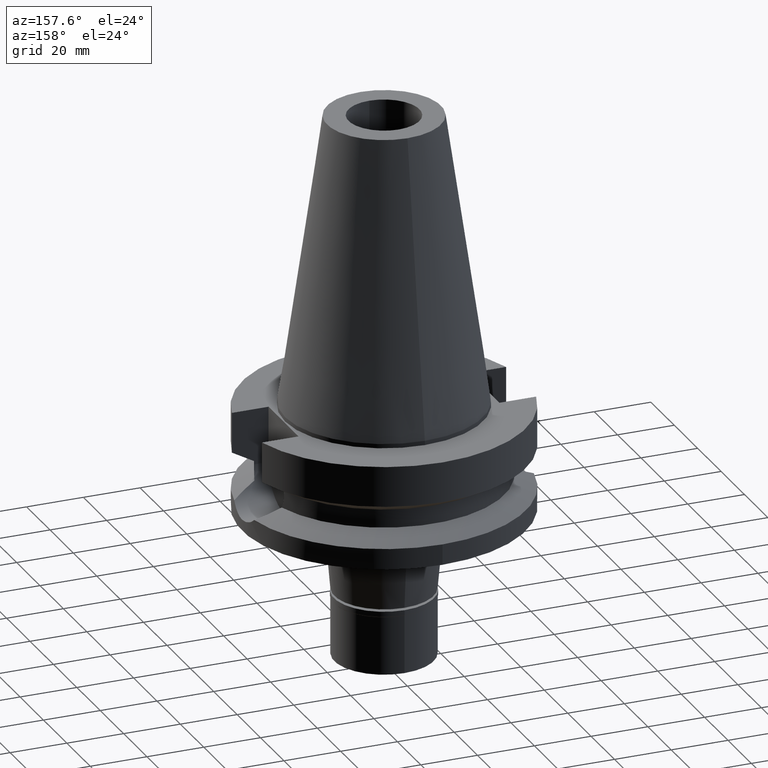
[diagram: clean part render]
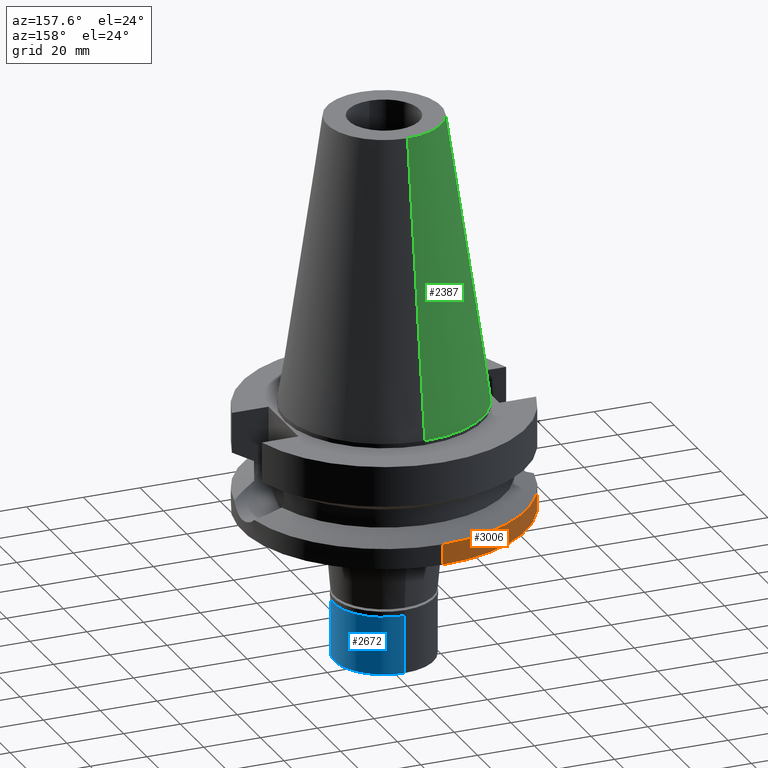
[diagram: same view with three faces highlighted in distinct colors, each labeled with its STEP entity id]
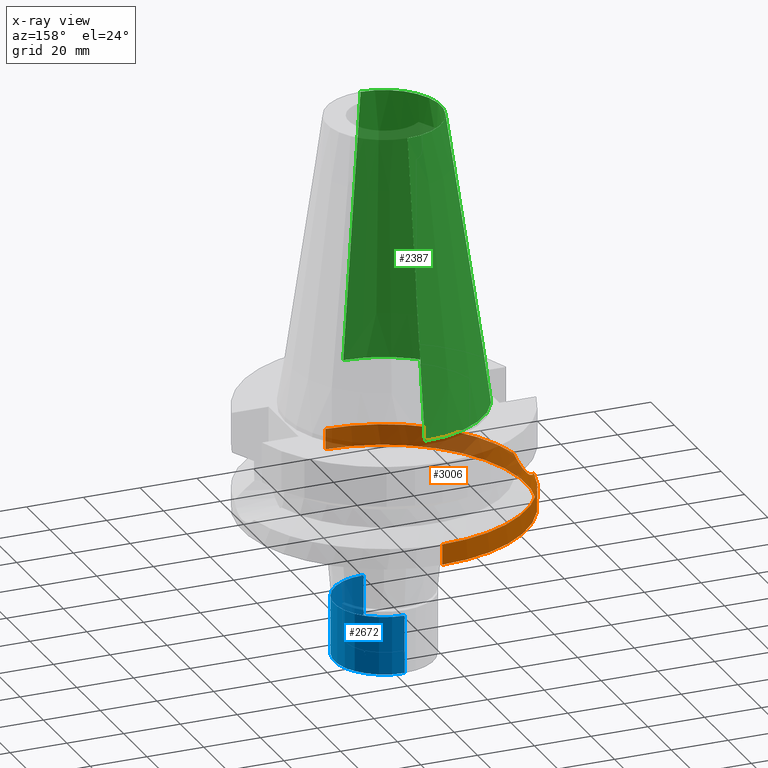
[diagram: x-ray of the same camera — body ghosted, the three highlighted faces saturated]
A machine part, auxiliary view with three faces highlighted in distinct colors.
The next image is the same camera in x-ray (body ghosted, the three faces saturated) — at least one of them is partly hidden behind the body in this view.
Their STEP definitions:

[orange] entity #3006 — the highlighted cylindrical surface (partial cylindrical patch) has radius 50 mm, axis along (0, 0, -1).
#75 = AXIS2_PLACEMENT_3D ( 'NONE', #922, #692, #2849 ) ;
#83 = CARTESIAN_POINT ( 'NONE',  ( -49.99656748919151283, 0.6198751114406390039, -33.98745238092824650 ) ) ;
#104 = CARTESIAN_POINT ( 'NONE',  ( -49.50802364957592516, 6.996643990318164974, -31.92857083793219175 ) ) ;
#119 = CARTESIAN_POINT ( 'NONE',  ( -49.79207077459926012, 4.554957529548581796, -33.16561446374463173 ) ) ;
#133 = CARTESIAN_POINT ( 'NONE',  ( -49.78024957254832827, 4.682602905082632994, -33.11659475770514405 ) ) ;
#149 = CARTESIAN_POINT ( 'NONE',  ( -49.55660296224259298, 6.644051108347784229, -32.14905121251541686 ) ) ;
#166 = VERTEX_POINT ( 'NONE', #225 ) ;
#181 = CIRCLE ( 'NONE', #75, 50.00000000000000000 ) ;
#202 = CARTESIAN_POINT ( 'NONE',  ( -49.26250064874000145, -8.556052234130000045, -30.73730776426999967 ) ) ;
#225 = CARTESIAN_POINT ( 'NONE',  ( -49.26250064874000145, 8.556052234130000045, -30.73730776426999967 ) ) ;
#231 = CARTESIAN_POINT ( 'NONE',  ( 0.0000000000000000000, -50.00000000000000000, -30.73730776426999967 ) ) ;
#320 = FACE_OUTER_BOUND ( 'NONE', #1792, .T. ) ;
#353 = CARTESIAN_POINT ( 'NONE',  ( -49.78718657742204101, 4.608071001832901636, -33.14537780177069237 ) ) ;
#371 = CARTESIAN_POINT ( 'NONE',  ( -49.96641370053853848, 1.854335669715734713, -33.87145058386469287 ) ) ;
#385 = CARTESIAN_POINT ( 'NONE',  ( -49.64903245720372382, 5.923660223744955822, -32.55987247520176453 ) ) ;
#400 = CARTESIAN_POINT ( 'NONE',  ( -49.80435567630478033, -4.418991950005775493, -33.21646025970883187 ) ) ;
#445 = ORIENTED_EDGE ( 'NONE', *, *, #727, .F. ) ;
#459 = CARTESIAN_POINT ( 'NONE',  ( -49.61115140422289471, -6.223964729746135127, -32.39254390107655013 ) ) ;
#460 = EDGE_CURVE ( 'NONE', #587, #1283, #2958, .T. ) ;
#553 = CARTESIAN_POINT ( 'NONE',  ( -49.76602569635761597, 4.832263763682187019, -33.05741896609282549 ) ) ;
#587 = VERTEX_POINT ( 'NONE', #231 ) ;
#618 = CARTESIAN_POINT ( 'NONE',  ( -49.97921232366404354, 1.472283131532135192, -33.92105330254109674 ) ) ;
#675 = CARTESIAN_POINT ( 'NONE',  ( -49.79691665736367412, -4.501773781380278727, -33.18568231503974886 ) ) ;
#692 = DIRECTION ( 'NONE',  ( 0.0000000000000000000, 0.0000000000000000000, -1.000000000000000000 ) ) ;
#727 = EDGE_CURVE ( 'NONE', #587, #1932, #2709, .T. ) ;
#735 = DIRECTION ( 'NONE',  ( 0.0000000000000000000, -2.250196262218000018E-14, -1.000000000000000000 ) ) ;
#758 = CARTESIAN_POINT ( 'NONE',  ( 0.0000000000000000000, 50.00000000000000000, -38.00000000000000000 ) ) ;
#799 = CARTESIAN_POINT ( 'NONE',  ( -49.92889851896556053, -2.680302570049156952, -33.72333287909097521 ) ) ;
#848 = CARTESIAN_POINT ( 'NONE',  ( -49.54916658601803192, 6.699295305162834779, -32.11552208874995529 ) ) ;
#862 = CARTESIAN_POINT ( 'NONE',  ( -49.57428995783436676, -6.510997233100431991, -32.22853959655537892 ) ) ;
#865 = ORIENTED_EDGE ( 'NONE', *, *, #2056, .T. ) ;
#895 = ORIENTED_EDGE ( 'NONE', *, *, #3059, .F. ) ;
#922 = CARTESIAN_POINT ( 'NONE',  ( 0.0000000000000000000, 0.0000000000000000000, -30.73730776426999967 ) ) ;
#925 = CARTESIAN_POINT ( 'NONE',  ( -49.59445580804035814, -6.356262091086591681, -32.31864549459512403 ) ) ;
#1016 = CARTESIAN_POINT ( 'NONE',  ( 0.0000000000000000000, 50.00000000000000000, -30.73730776426999967 ) ) ;
#1017 = CARTESIAN_POINT ( 'NONE',  ( -49.26250064874000145, -8.556052234130000045, -30.73730776426999967 ) ) ;
#1024 = CARTESIAN_POINT ( 'NONE',  ( -49.98153239809872872, -1.536309943115428345, -33.93135900366053193 ) ) ;
#1026 = CARTESIAN_POINT ( 'NONE',  ( 0.0000000000000000000, 0.0000000000000000000, -30.73730776426999967 ) ) ;
#1059 = CARTESIAN_POINT ( 'NONE',  ( -49.32374122236981862, 8.203452259786416789, -31.05198044114845146 ) ) ;
#1064 = ORIENTED_EDGE ( 'NONE', *, *, #460, .T. ) ;
#1072 = CARTESIAN_POINT ( 'NONE',  ( -49.99918498204763040, 0.2914842725003467527, -33.99728988284343956 ) ) ;
#1109 = CARTESIAN_POINT ( 'NONE',  ( -49.79153138710990589, -4.560858291814150256, -33.16337717898378656 ) ) ;
#1121 = CARTESIAN_POINT ( 'NONE',  ( -49.38328813138510043, -7.860603763329423010, -31.35795055457392522 ) ) ;
#1137 = CARTESIAN_POINT ( 'NONE',  ( -49.55886472126628206, -6.627183405198656452, -32.15923396748349461 ) ) ;
#1184 = B_SPLINE_CURVE_WITH_KNOTS ( 'NONE', 3,
 ( #2279, #1059, #1545, #2260, #2474, #104, #2541, #2242, #848, #1267, #2017, #2940, #149, #2527, #385, #2959, #1530, #1804, #553, #133, #353, #1513, #119, #2977, #2034, #1317, #371, #618, #1499, #83, #1072, #2510, #2992, #1301, #1329, #2306, #1024, #799, #1734, #1751, #1591, #3085, #400, #675, #2837, #1109, #1869, #1852, #2081, #1623, #1575, #459, #925, #862, #2823, #1137, #2337, #1885, #2852, #1834, #1121, #202 ),
 .UNSPECIFIED., .F., .F.,
 ( 4, 2, 2, 1, 1, 1, 1, 2, 2, 2, 2, 1, 1, 1, 2, 2, 2, 2, 1, 1, 1, 2, 2, 2, 2, 1, 1, 1, 1, 2, 2, 2, 2, 1, 1, 1, 1, 2, 2, 4 ),
 ( 0.0000000000000000000, 0.06249999999998448463, 0.09374999999997667144, 0.1093749999999731465, 0.1171874999999711342, 0.1210937499999697881, 0.1230468749999691080, 0.1240234374999691774, 0.1249999999999692746, 0.1874999999999777123, 0.2187499999999818756, 0.2343749999999837075, 0.2421874999999846789, 0.2460937499999852063, 0.2480468749999852618, 0.2499999999999853451, 0.3749999999999875655, 0.4374999999999887312, 0.4687499999999893974, 0.4843749999999897304, 0.4921874999999898970, 0.4960937499999899525, 0.4999999999999900080, 0.6249999999999923395, 0.6874999999999935607, 0.7187499999999941158, 0.7343749999999943379, 0.7421874999999944489, 0.7460937499999945599, 0.7480468749999945599, 0.7499999999999946709, 0.8125000000000058842, 0.8437500000000114353, 0.8593750000000142109, 0.8671875000000156541, 0.8710937500000163203, 0.8730468750000167644, 0.8740234375000168754, 0.8750000000000168754, 1.000000000000000000 ),
 .UNSPECIFIED. ) ;
#1187 = AXIS2_PLACEMENT_3D ( 'NONE', #1026, #1770, #2679 ) ;
#1244 = LINE ( 'NONE', #1016, #1824 ) ;
#1267 = CARTESIAN_POINT ( 'NONE',  ( -49.55328023545038718, 6.668788011589782627, -32.13407698018764336 ) ) ;
#1280 = EDGE_CURVE ( 'NONE', #2007, #1932, #2754, .T. ) ;
#1283 = VERTEX_POINT ( 'NONE', #1017 ) ;
#1301 = CARTESIAN_POINT ( 'NONE',  ( -49.99991319832172820, 0.01136593545093359317, -34.00001610124987650 ) ) ;
#1303 = AXIS2_PLACEMENT_3D ( 'NONE', #2731, #2494, #3012 ) ;
#1317 = CARTESIAN_POINT ( 'NONE',  ( -49.91494156087059508, 3.003678811047479691, -33.66822178006243860 ) ) ;
#1329 = CARTESIAN_POINT ( 'NONE',  ( -49.99991212798500584, -0.01359305582003099769, -34.00001368996090179 ) ) ;
#1383 = AXIS2_PLACEMENT_3D ( 'NONE', #2687, #2234, #1493 ) ;
#1399 = VECTOR ( 'NONE', #735, 1000.000000000000000 ) ;
#1407 = CARTESIAN_POINT ( 'NONE',  ( 0.0000000000000000000, 50.00000000000000000, -30.73730776426999967 ) ) ;
#1420 = CARTESIAN_POINT ( 'NONE',  ( 0.0000000000000000000, -50.00000000000000000, -38.00000000000000000 ) ) ;
#1473 = ORIENTED_EDGE ( 'NONE', *, *, #1280, .T. ) ;
#1492 = DIRECTION ( 'NONE',  ( 0.0000000000000000000, 2.152361642122000014E-14, -1.000000000000000000 ) ) ;
#1493 = DIRECTION ( 'NONE',  ( 0.0000000000000000000, 1.000000000000000000, 0.0000000000000000000 ) ) ;
#1499 = CARTESIAN_POINT ( 'NONE',  ( -49.99187212320664742, 0.9033269226019463582, -33.96962286847150381 ) ) ;
#1513 = CARTESIAN_POINT ( 'NONE',  ( -49.79012209382042897, 4.576194113174860689, -33.15754248278489769 ) ) ;
#1530 = CARTESIAN_POINT ( 'NONE',  ( -49.72685100685968251, 5.221220376124544593, -32.89294692301049849 ) ) ;
#1537 = ORIENTED_EDGE ( 'NONE', *, *, #1856, .T. ) ;
#1545 = CARTESIAN_POINT ( 'NONE',  ( -49.37893249947889274, 7.861649083546045524, -31.32227597701175270 ) ) ;
#1575 = CARTESIAN_POINT ( 'NONE',  ( -49.64375670554833420, -5.959977035545171553, -32.53601313168068287 ) ) ;
#1591 = CARTESIAN_POINT ( 'NONE',  ( -49.84651032207120380, -3.920896850928409449, -33.39006912574939179 ) ) ;
#1623 = CARTESIAN_POINT ( 'NONE',  ( -49.66444571837911326, -5.784797251040038724, -32.62588835537268750 ) ) ;
#1734 = CARTESIAN_POINT ( 'NONE',  ( -49.90703590770839071, -3.062680104811444259, -33.63596624746052299 ) ) ;
#1751 = CARTESIAN_POINT ( 'NONE',  ( -49.86776501350345825, -3.635030136527290345, -33.47672996158433989 ) ) ;
#1767 = CYLINDRICAL_SURFACE ( 'NONE', #1303, 50.00000000000000000 ) ;
#1770 = DIRECTION ( 'NONE',  ( 0.0000000000000000000, 0.0000000000000000000, -1.000000000000000000 ) ) ;
#1792 = EDGE_LOOP ( 'NONE', ( #1537, #865, #1473, #445, #1064, #895 ) ) ;
#1804 = CARTESIAN_POINT ( 'NONE',  ( -49.75323403143415391, 4.961523142516313101, -33.00388751715867386 ) ) ;
#1824 = VECTOR ( 'NONE', #1492, 1000.000000000000000 ) ;
#1834 = CARTESIAN_POINT ( 'NONE',  ( -49.48034313886797264, -7.211008701570739809, -31.80506207722925183 ) ) ;
#1852 = CARTESIAN_POINT ( 'NONE',  ( -49.75846009005723403, -4.919875096736723741, -33.02628834698527527 ) ) ;
#1856 = EDGE_CURVE ( 'NONE', #166, #1877, #181, .T. ) ;
#1869 = CARTESIAN_POINT ( 'NONE',  ( -49.79032517722563256, -4.573999506086414257, -33.15837850807476883 ) ) ;
#1877 = VERTEX_POINT ( 'NONE', #1407 ) ;
#1885 = CARTESIAN_POINT ( 'NONE',  ( -49.55515418395481220, -6.654861456623643257, -32.14251385465911426 ) ) ;
#1932 = VERTEX_POINT ( 'NONE', #1420 ) ;
#1996 = CARTESIAN_POINT ( 'NONE',  ( 0.0000000000000000000, -50.00000000000000000, -30.73730776426999967 ) ) ;
#2007 = VERTEX_POINT ( 'NONE', #758 ) ;
#2017 = CARTESIAN_POINT ( 'NONE',  ( -49.55502993615293406, 6.655769661129807169, -32.14196323986546133 ) ) ;
#2034 = CARTESIAN_POINT ( 'NONE',  ( -49.86319177403686354, 3.774326660484953688, -33.45998250813278219 ) ) ;
#2056 = EDGE_CURVE ( 'NONE', #1877, #2007, #1244, .T. ) ;
#2081 = CARTESIAN_POINT ( 'NONE',  ( -49.72336919271285893, -5.262903667507884187, -32.87919076957178532 ) ) ;
#2234 = DIRECTION ( 'NONE',  ( 0.0000000000000000000, 0.0000000000000000000, 1.000000000000000000 ) ) ;
#2242 = CARTESIAN_POINT ( 'NONE',  ( -49.54081522931458892, 6.760831091291927386, -32.07779346190705638 ) ) ;
#2260 = CARTESIAN_POINT ( 'NONE',  ( -49.45264547036133251, 7.378484260520888682, -31.67235839693618260 ) ) ;
#2279 = CARTESIAN_POINT ( 'NONE',  ( -49.26250064874000145, 8.556052234130000045, -30.73730776426999967 ) ) ;
#2306 = CARTESIAN_POINT ( 'NONE',  ( -49.99934971133639294, -0.7780250447793808366, -33.99782700923827861 ) ) ;
#2337 = CARTESIAN_POINT ( 'NONE',  ( -49.55663962683414070, -6.643789794558300876, -32.14920901780898532 ) ) ;
#2474 = CARTESIAN_POINT ( 'NONE',  ( -49.47570413652528032, 7.222306618669586342, -31.77982844867365841 ) ) ;
#2494 = DIRECTION ( 'NONE',  ( 0.0000000000000000000, 0.0000000000000000000, -1.000000000000000000 ) ) ;
#2510 = CARTESIAN_POINT ( 'NONE',  ( -49.99977861994413075, 0.1279244560717259227, -33.99951148631564024 ) ) ;
#2527 = CARTESIAN_POINT ( 'NONE',  ( -49.60532501401027616, 6.280351743141885379, -32.36849389371059260 ) ) ;
#2541 = CARTESIAN_POINT ( 'NONE',  ( -49.52361628455244613, 6.885959952514316917, -31.99982566565259035 ) ) ;
#2679 = DIRECTION ( 'NONE',  ( 0.0000000000000000000, -1.000000000000000000, 0.0000000000000000000 ) ) ;
#2687 = CARTESIAN_POINT ( 'NONE',  ( 0.0000000000000000000, 2.584678301939999885E-14, -38.00000000000000000 ) ) ;
#2709 = LINE ( 'NONE', #1996, #1399 ) ;
#2731 = CARTESIAN_POINT ( 'NONE',  ( 0.0000000000000000000, 2.584678301939999885E-14, 111.0550000000000068 ) ) ;
#2754 = CIRCLE ( 'NONE', #1383, 50.00000000000000000 ) ;
#2823 = CARTESIAN_POINT ( 'NONE',  ( -49.56403511906646031, -6.588443188315063814, -32.18250114694104269 ) ) ;
#2837 = CARTESIAN_POINT ( 'NONE',  ( -49.79369055534994715, -4.537227758224675611, -33.17232190022104987 ) ) ;
#2849 = DIRECTION ( 'NONE',  ( -0.9852500129747439050, 0.1711210446826074982, 0.0000000000000000000 ) ) ;
#2852 = CARTESIAN_POINT ( 'NONE',  ( -49.55423850347235515, -6.661675813699070581, -32.13838478410833943 ) ) ;
#2940 = CARTESIAN_POINT ( 'NONE',  ( -49.55619344952989280, 6.647103290304155365, -32.14720616777719187 ) ) ;
#2958 = CIRCLE ( 'NONE', #1187, 50.00000000000000000 ) ;
#2959 = CARTESIAN_POINT ( 'NONE',  ( -49.70819606417327208, 5.395925771542074756, -32.81381563446089444 ) ) ;
#2977 = CARTESIAN_POINT ( 'NONE',  ( -49.79292594743096600, 4.545608915706899289, -33.16915556116915553 ) ) ;
#2992 = CARTESIAN_POINT ( 'NONE',  ( -49.99987979864302901, 0.05796992317221177915, -33.99989036820460342 ) ) ;
#3006 = ADVANCED_FACE ( 'NONE', ( #320 ), #1767, .T. ) ;
#3012 = DIRECTION ( 'NONE',  ( 0.0000000000000000000, -1.000000000000000000, 0.0000000000000000000 ) ) ;
#3059 = EDGE_CURVE ( 'NONE', #166, #1283, #1184, .T. ) ;
#3085 = CARTESIAN_POINT ( 'NONE',  ( -49.81887950448975033, -4.253215501575737356, -33.27643327975735588 ) ) ;

[blue] entity #2672 — the highlighted cylindrical surface (partial cylindrical patch) has radius 17.5 mm, axis along (0, 0, -1).
#54 = LINE ( 'NONE', #68, #1924 ) ;
#68 = CARTESIAN_POINT ( 'NONE',  ( 0.0000000000000000000, -17.50000000000000000, -2.000000000000000000 ) ) ;
#81 = LINE ( 'NONE', #1021, #852 ) ;
#103 = AXIS2_PLACEMENT_3D ( 'NONE', #308, #984, #1009 ) ;
#308 = CARTESIAN_POINT ( 'NONE',  ( 0.0000000000000000000, 0.0000000000000000000, -2.000000000000000000 ) ) ;
#329 = CARTESIAN_POINT ( 'NONE',  ( 0.0000000000000000000, 17.50000000000000000, -22.50000000000000000 ) ) ;
#342 = EDGE_CURVE ( 'NONE', #2549, #1289, #1439, .T. ) ;
#502 = DIRECTION ( 'NONE',  ( 0.0000000000000000000, 0.0000000000000000000, 1.000000000000000000 ) ) ;
#700 = CARTESIAN_POINT ( 'NONE',  ( 0.0000000000000000000, 17.50000000000000000, -2.000000000000000000 ) ) ;
#724 = AXIS2_PLACEMENT_3D ( 'NONE', #1985, #2918, #729 ) ;
#728 = ORIENTED_EDGE ( 'NONE', *, *, #871, .T. ) ;
#729 = DIRECTION ( 'NONE',  ( 0.0000000000000000000, -1.000000000000000000, 0.0000000000000000000 ) ) ;
#838 = EDGE_CURVE ( 'NONE', #2549, #1426, #81, .T. ) ;
#852 = VECTOR ( 'NONE', #2895, 1000.000000000000000 ) ;
#871 = EDGE_CURVE ( 'NONE', #1487, #1426, #2066, .T. ) ;
#891 = CARTESIAN_POINT ( 'NONE',  ( 0.0000000000000000000, -17.50000000000000000, -2.000000000000000000 ) ) ;
#984 = DIRECTION ( 'NONE',  ( 0.0000000000000000000, 0.0000000000000000000, -1.000000000000000000 ) ) ;
#986 = CYLINDRICAL_SURFACE ( 'NONE', #724, 17.50000000000000000 ) ;
#1009 = DIRECTION ( 'NONE',  ( 0.0000000000000000000, 1.000000000000000000, 0.0000000000000000000 ) ) ;
#1021 = CARTESIAN_POINT ( 'NONE',  ( 0.0000000000000000000, 17.50000000000000000, -2.000000000000000000 ) ) ;
#1097 = AXIS2_PLACEMENT_3D ( 'NONE', #2663, #502, #1452 ) ;
#1141 = ORIENTED_EDGE ( 'NONE', *, *, #2897, .T. ) ;
#1162 = CARTESIAN_POINT ( 'NONE',  ( 0.0000000000000000000, -17.50000000000000000, -22.50000000000000000 ) ) ;
#1289 = VERTEX_POINT ( 'NONE', #891 ) ;
#1426 = VERTEX_POINT ( 'NONE', #329 ) ;
#1428 = ORIENTED_EDGE ( 'NONE', *, *, #342, .T. ) ;
#1439 = CIRCLE ( 'NONE', #103, 17.50000000000000000 ) ;
#1452 = DIRECTION ( 'NONE',  ( 0.0000000000000000000, -1.000000000000000000, 0.0000000000000000000 ) ) ;
#1487 = VERTEX_POINT ( 'NONE', #1162 ) ;
#1746 = DIRECTION ( 'NONE',  ( 0.0000000000000000000, 0.0000000000000000000, -1.000000000000000000 ) ) ;
#1888 = EDGE_LOOP ( 'NONE', ( #1428, #1141, #728, #2414 ) ) ;
#1924 = VECTOR ( 'NONE', #1746, 1000.000000000000000 ) ;
#1985 = CARTESIAN_POINT ( 'NONE',  ( 0.0000000000000000000, 0.0000000000000000000, 0.0000000000000000000 ) ) ;
#2066 = CIRCLE ( 'NONE', #1097, 17.50000000000000000 ) ;
#2414 = ORIENTED_EDGE ( 'NONE', *, *, #838, .F. ) ;
#2549 = VERTEX_POINT ( 'NONE', #700 ) ;
#2663 = CARTESIAN_POINT ( 'NONE',  ( 0.0000000000000000000, 0.0000000000000000000, -22.50000000000000000 ) ) ;
#2672 = ADVANCED_FACE ( 'NONE', ( #2698 ), #986, .T. ) ;
#2698 = FACE_OUTER_BOUND ( 'NONE', #1888, .T. ) ;
#2895 = DIRECTION ( 'NONE',  ( 0.0000000000000000000, 0.0000000000000000000, -1.000000000000000000 ) ) ;
#2897 = EDGE_CURVE ( 'NONE', #1289, #1487, #54, .T. ) ;
#2918 = DIRECTION ( 'NONE',  ( 0.0000000000000000000, 0.0000000000000000000, -1.000000000000000000 ) ) ;

[green] entity #2387 — the highlighted conical surface has half-angle 8.297 deg.
#123 = VERTEX_POINT ( 'NONE', #900 ) ;
#141 = DIRECTION ( 'NONE',  ( 0.0000000000000000000, 0.1443043893538948075, -0.9895333461855641000 ) ) ;
#165 = CARTESIAN_POINT ( 'NONE',  ( 0.0000000000000000000, 20.07942971896000017, 101.7999999999999972 ) ) ;
#176 = EDGE_CURVE ( 'NONE', #123, #617, #2100, .T. ) ;
#264 = ORIENTED_EDGE ( 'NONE', *, *, #2256, .T. ) ;
#274 = ORIENTED_EDGE ( 'NONE', *, *, #1456, .F. ) ;
#405 = CARTESIAN_POINT ( 'NONE',  ( 0.0000000000000000000, -20.07942971896000017, 101.7999999999999972 ) ) ;
#499 = CIRCLE ( 'NONE', #2962, 34.92499999999999716 ) ;
#617 = VERTEX_POINT ( 'NONE', #3087 ) ;
#625 = DIRECTION ( 'NONE',  ( 0.0000000000000000000, -1.000000000000000000, 0.0000000000000000000 ) ) ;
#809 = CONICAL_SURFACE ( 'NONE', #1502, 27.50221485948000222, 0.1448099680379422438 ) ;
#900 = CARTESIAN_POINT ( 'NONE',  ( 0.0000000000000000000, -20.07942971896000017, 101.7999999999999972 ) ) ;
#1022 = VERTEX_POINT ( 'NONE', #165 ) ;
#1144 = DIRECTION ( 'NONE',  ( 0.0000000000000000000, -0.1443043893538948075, -0.9895333461855641000 ) ) ;
#1191 = DIRECTION ( 'NONE',  ( 0.0000000000000000000, -1.000000000000000000, 0.0000000000000000000 ) ) ;
#1385 = VERTEX_POINT ( 'NONE', #2551 ) ;
#1438 = ORIENTED_EDGE ( 'NONE', *, *, #176, .F. ) ;
#1456 = EDGE_CURVE ( 'NONE', #617, #1385, #499, .T. ) ;
#1502 = AXIS2_PLACEMENT_3D ( 'NONE', #2755, #2361, #1191 ) ;
#1554 = CARTESIAN_POINT ( 'NONE',  ( 0.0000000000000000000, 20.07942971896000017, 101.7999999999999972 ) ) ;
#1555 = DIRECTION ( 'NONE',  ( 0.0000000000000000000, 0.0000000000000000000, -1.000000000000000000 ) ) ;
#1568 = LINE ( 'NONE', #1554, #2922 ) ;
#1586 = VECTOR ( 'NONE', #1144, 1000.000000000000114 ) ;
#1694 = EDGE_CURVE ( 'NONE', #123, #1022, #3004, .T. ) ;
#1778 = FACE_OUTER_BOUND ( 'NONE', #2016, .T. ) ;
#2016 = EDGE_LOOP ( 'NONE', ( #274, #1438, #2871, #264 ) ) ;
#2100 = LINE ( 'NONE', #405, #1586 ) ;
#2256 = EDGE_CURVE ( 'NONE', #1022, #1385, #1568, .T. ) ;
#2319 = DIRECTION ( 'NONE',  ( 0.0000000000000000000, -1.000000000000000000, 0.0000000000000000000 ) ) ;
#2356 = AXIS2_PLACEMENT_3D ( 'NONE', #2776, #2790, #2319 ) ;
#2361 = DIRECTION ( 'NONE',  ( 0.0000000000000000000, 0.0000000000000000000, -1.000000000000000000 ) ) ;
#2387 = ADVANCED_FACE ( 'NONE', ( #1778 ), #809, .T. ) ;
#2551 = CARTESIAN_POINT ( 'NONE',  ( 0.0000000000000000000, 34.92499999999999716, 3.481659405224000176E-13 ) ) ;
#2755 = CARTESIAN_POINT ( 'NONE',  ( 0.0000000000000000000, 1.847992019912999597E-14, 50.89999999999999858 ) ) ;
#2773 = CARTESIAN_POINT ( 'NONE',  ( 0.0000000000000000000, 1.847992019912999597E-14, 3.979039320256999774E-13 ) ) ;
#2776 = CARTESIAN_POINT ( 'NONE',  ( 0.0000000000000000000, 1.847992019912999597E-14, 101.7999999999999972 ) ) ;
#2790 = DIRECTION ( 'NONE',  ( 0.0000000000000000000, 0.0000000000000000000, -1.000000000000000000 ) ) ;
#2871 = ORIENTED_EDGE ( 'NONE', *, *, #1694, .T. ) ;
#2922 = VECTOR ( 'NONE', #141, 1000.000000000000114 ) ;
#2962 = AXIS2_PLACEMENT_3D ( 'NONE', #2773, #1555, #625 ) ;
#3004 = CIRCLE ( 'NONE', #2356, 20.07942971896000017 ) ;
#3087 = CARTESIAN_POINT ( 'NONE',  ( 0.0000000000000000000, -34.92499999999999716, 3.481659405224000176E-13 ) ) ;